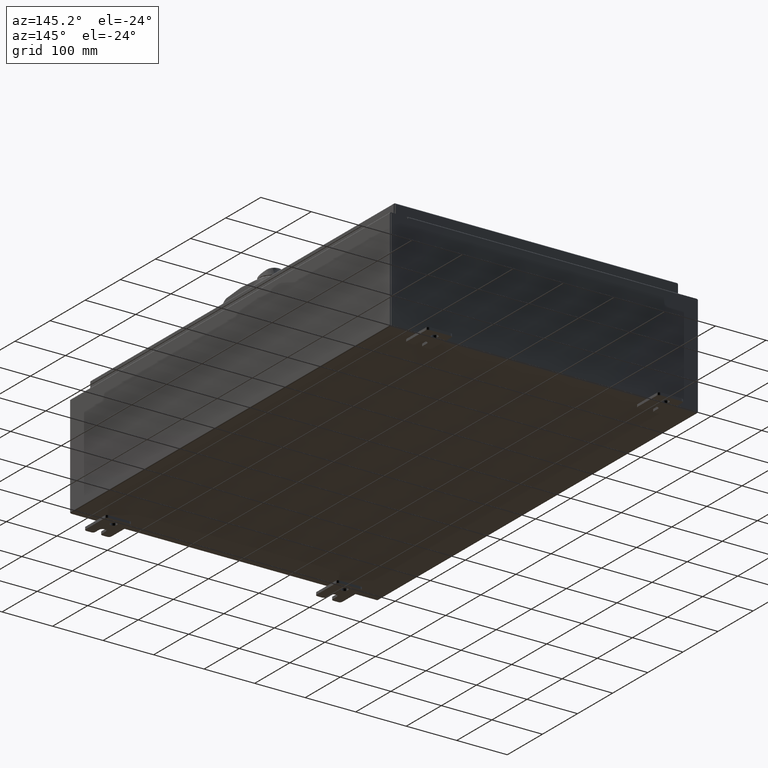
[diagram: clean part render]
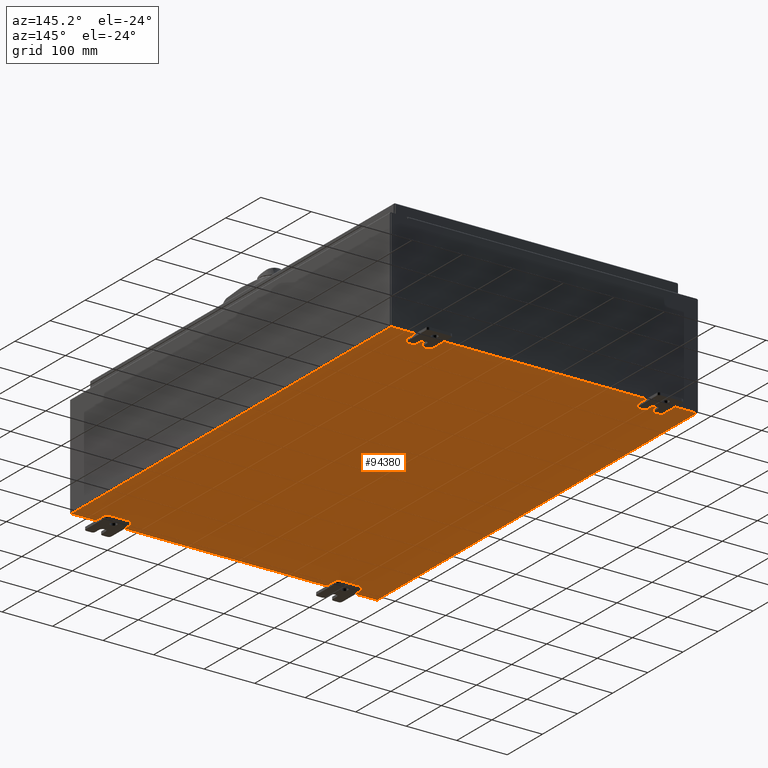
[diagram: same view with one face highlighted and labeled with its STEP entity id]
A machine part, auxiliary view. The second image highlights one B-rep face of the part: STEP entity #94380.
In plain terms, the highlighted planar face has unit normal (0, 0, -1).
Its self-contained STEP definition (entity closure, byte-faithful):
#1110 = FACE_OUTER_BOUND ( 'NONE', #8902, .T. ) ;
#6392 = DIRECTION ( 'NONE',  ( 0.0000000000000000000, 0.0000000000000000000, -1.000000000000000000 ) ) ;
#8902 = EDGE_LOOP ( 'NONE', ( #55984, #80396, #51081, #94592 ) ) ;
#13595 = VECTOR ( 'NONE', #78719, 39.37007874015748100 ) ;
#14097 = LINE ( 'NONE', #110550, #83311 ) ;
#16287 = DIRECTION ( 'NONE',  ( -0.0000000000000000000, 1.000000000000000000, -0.0000000000000000000 ) ) ;
#20789 = EDGE_CURVE ( 'NONE', #36558, #37619, #36328, .T. ) ;
#28019 = VECTOR ( 'NONE', #63913, 39.37007874015748100 ) ;
#30379 = EDGE_CURVE ( 'NONE', #89631, #86919, #47529, .T. ) ;
#35450 = CARTESIAN_POINT ( 'NONE',  ( 11.91230000000000000, 17.92529999999999600, -0.07469999999999738000 ) ) ;
#35854 = CARTESIAN_POINT ( 'NONE',  ( 11.91230000000000000, 17.92529999999999600, -0.07469999999999738000 ) ) ;
#36328 = LINE ( 'NONE', #67806, #105532 ) ;
#36558 = VERTEX_POINT ( 'NONE', #100665 ) ;
#37619 = VERTEX_POINT ( 'NONE', #93718 ) ;
#47529 = LINE ( 'NONE', #50806, #13595 ) ;
#50806 = CARTESIAN_POINT ( 'NONE',  ( -12.00000000000000200, 17.92529999999999600, -0.07470000000000000300 ) ) ;
#51081 = ORIENTED_EDGE ( 'NONE', *, *, #30379, .F. ) ;
#53237 = LINE ( 'NONE', #35450, #28019 ) ;
#53354 = PLANE ( 'NONE',  #113990 ) ;
#53756 = EDGE_CURVE ( 'NONE', #89631, #37619, #53237, .T. ) ;
#55984 = ORIENTED_EDGE ( 'NONE', *, *, #20789, .F. ) ;
#63913 = DIRECTION ( 'NONE',  ( -0.0000000000000000000, -1.000000000000000000, -8.208677865577646300E-017 ) ) ;
#67806 = CARTESIAN_POINT ( 'NONE',  ( -12.00000000000000200, -17.92530000000000400, -0.07470000000000000300 ) ) ;
#72228 = DIRECTION ( 'NONE',  ( -1.000000000000000000, 0.0000000000000000000, -0.0000000000000000000 ) ) ;
#78719 = DIRECTION ( 'NONE',  ( -1.000000000000000000, -0.0000000000000000000, -0.0000000000000000000 ) ) ;
#80396 = ORIENTED_EDGE ( 'NONE', *, *, #116806, .T. ) ;
#81821 = CARTESIAN_POINT ( 'NONE',  ( -11.91230000000000000, 17.92529999999999600, -0.07470000000000000300 ) ) ;
#83311 = VECTOR ( 'NONE', #16287, 39.37007874015748100 ) ;
#86919 = VERTEX_POINT ( 'NONE', #81821 ) ;
#89631 = VERTEX_POINT ( 'NONE', #35854 ) ;
#93718 = CARTESIAN_POINT ( 'NONE',  ( 11.91229999999999100, -17.92530000000000400, -0.07470000000000000300 ) ) ;
#94380 = ADVANCED_FACE ( 'NONE', ( #1110 ), #53354, .T. ) ;
#94592 = ORIENTED_EDGE ( 'NONE', *, *, #53756, .T. ) ;
#95721 = DIRECTION ( 'NONE',  ( 1.000000000000000000, 0.0000000000000000000, 0.0000000000000000000 ) ) ;
#100665 = CARTESIAN_POINT ( 'NONE',  ( -11.91230000000000000, -17.92530000000000400, -0.07469999999999994700 ) ) ;
#105532 = VECTOR ( 'NONE', #95721, 39.37007874015748100 ) ;
#110550 = CARTESIAN_POINT ( 'NONE',  ( -11.91230000000000000, -17.92530000000000400, -0.07469999999999994700 ) ) ;
#113990 = AXIS2_PLACEMENT_3D ( 'NONE', #119095, #6392, #72228 ) ;
#116806 = EDGE_CURVE ( 'NONE', #36558, #86919, #14097, .T. ) ;
#119095 = CARTESIAN_POINT ( 'NONE',  ( 0.0000000000000000000, 0.0000000000000000000, -0.07470000000000000300 ) ) ;